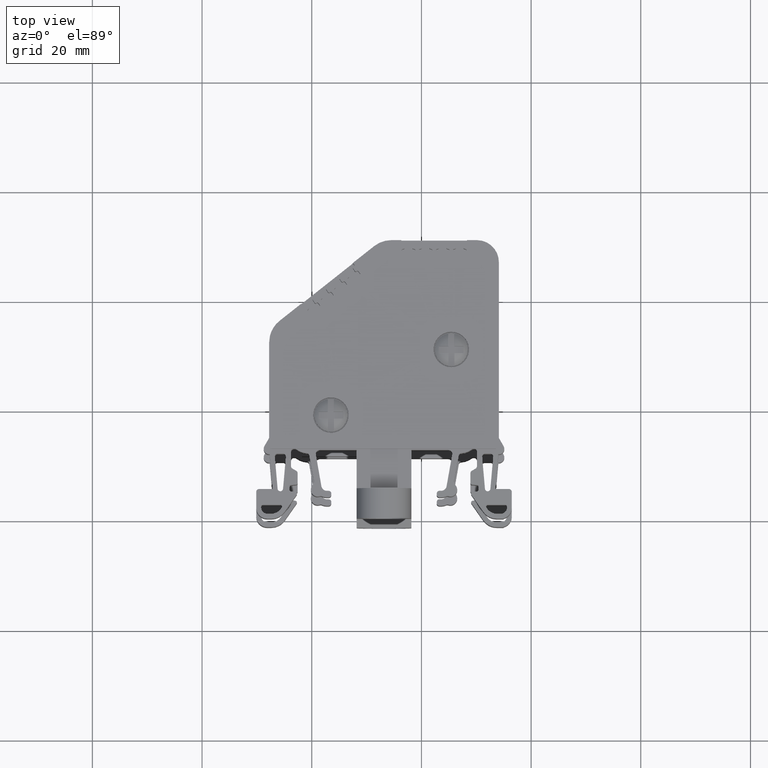
[diagram: clean part render]
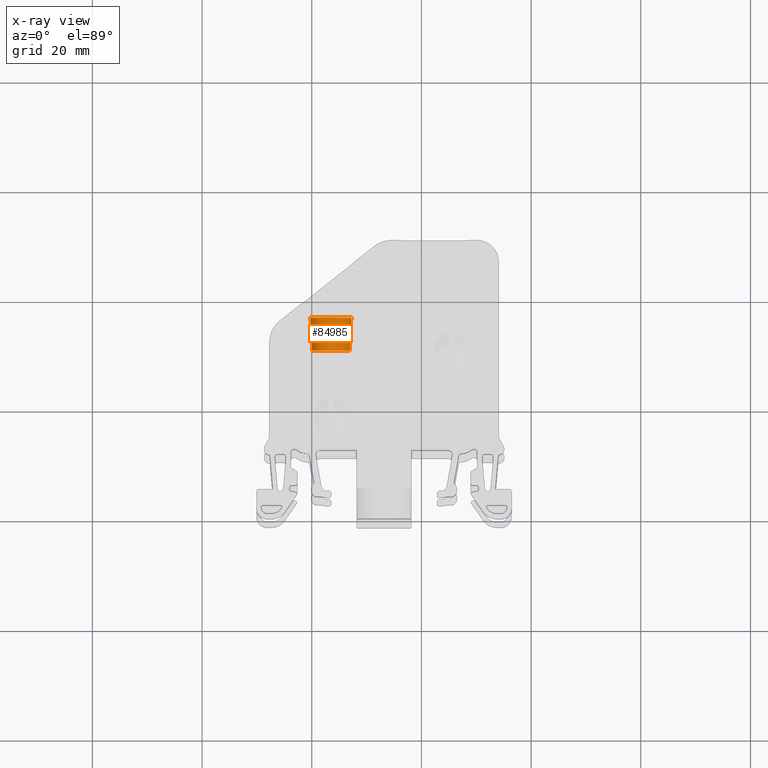
[diagram: x-ray — body ghosted, one internal face saturated and labeled with its STEP entity id]
A machine part, top view, then the same camera in x-ray: the body is ghosted and one INTERNAL B-rep face — a face not visible from any outside direction — is saturated and labeled: STEP entity #84985.
In plain terms, the highlighted conical surface has half-angle 3 deg.
Its self-contained STEP definition (entity closure, byte-faithful):
#2483 = CARTESIAN_POINT ( 'NONE',  ( -52.78163004031456800, 35.55127427672903900, 42.01981950543060400 ) ) ;
#2505 = CARTESIAN_POINT ( 'NONE',  ( -53.09712487160049200, 29.53127427673077300, 42.01981950543052600 ) ) ;
#2506 = CARTESIAN_POINT ( 'NONE',  ( -59.90613520902143600, 29.53127427671951100, 42.01981950543052600 ) ) ;
#2561 = CARTESIAN_POINT ( 'NONE',  ( -60.22163004030626600, 35.55127427670640100, 42.01981950543060400 ) ) ;
#15126 = VECTOR ( 'NONE', #84195, 1000.000000000000100 ) ;
#15304 = VECTOR ( 'NONE', #84471, 1000.000000000000100 ) ;
#30603 = CARTESIAN_POINT ( 'NONE',  ( -56.50163004031117000, 35.55127427671315100, 42.01981950543059700 ) ) ;
#30606 = FACE_OUTER_BOUND ( 'NONE', #45063, .T. ) ;
#30615 = DIRECTION ( 'NONE',  ( -1.000000000000000000, 2.051823466211728700E-014, 0.0000000000000000000 ) ) ;
#30648 = DIRECTION ( 'NONE',  ( 2.051823466211726800E-014, 1.000000000000000000, 1.585499951163608200E-014 ) ) ;
#45063 = EDGE_LOOP ( 'NONE', ( #82973, #82936, #82978, #82972 ) ) ;
#48493 = CONICAL_SURFACE ( 'NONE', #48541, 3.719999999995282600, 0.05235987756015277700 ) ;
#48541 = AXIS2_PLACEMENT_3D ( 'NONE', #30603, #30648, #30615 ) ;
#53876 = B_SPLINE_CURVE_WITH_KNOTS ( 'NONE', 3,
 ( #84917, #84920, #84857, #84906, #84892, #84866, #84858, #84869, #84883, #84893, #84895, #84939, #85005, #84977, #84927, #84986, #84930, #84993 ),
 .UNSPECIFIED., .F., .F.,
 ( 4, 2, 2, 2, 2, 2, 2, 2, 4 ),
 ( 0.0000000000000000000, 0.1250000000000000000, 0.2500000000000000000, 0.3750000000000000000, 0.5000000000000000000, 0.6250000000000000000, 0.7500000000000000000, 0.8750000000000000000, 1.000000000000000000 ),
 .UNSPECIFIED. ) ;
#53922 = B_SPLINE_CURVE_WITH_KNOTS ( 'NONE', 3,
 ( #83865, #83866, #83895, #83880, #83843, #83845, #83867, #83868, #83869, #83870, #83872, #83871, #83873, #83881, #83919, #83904, #83932, #83928, #83912, #83924, #83949, #83950, #83951, #83902, #83947, #83903, #83913, #83911, #83952, #83933, #83937, #83938, #83905, #83925, #83910, #83953, #83898, #83929, #83906, #83908, #83907, #83920, #83926, #83946, #83918, #83954, #83941, #83935, #83909, #83955, #83916, #83900, #83939, #83921 ),
 .UNSPECIFIED., .F., .F.,
 ( 4, 1, 1, 1, 2, 2, 2, 2, 2, 1, 2, 2, 1, 1, 2, 2, 2, 1, 1, 1, 2, 2, 2, 2, 2, 1, 2, 2, 1, 1, 2, 2, 4 ),
 ( 0.0000000000000000000, 0.06250000000000972800, 0.09375000000001551500, 0.1093750000000190400, 0.1171875000000196200, 0.1250000000000202100, 0.1562500000000203200, 0.1875000000000204300, 0.2500000000000183200, 0.2812500000000166500, 0.2968750000000163200, 0.3125000000000160400, 0.3437500000000164300, 0.3593750000000158800, 0.3671875000000148200, 0.3750000000000137100, 0.5000000000000040000, 0.5625000000000001100, 0.5937499999999978900, 0.6093749999999971100, 0.6171874999999966700, 0.6249999999999962300, 0.6562499999999943400, 0.6874999999999924500, 0.7499999999999894500, 0.7812499999999867900, 0.7968749999999860100, 0.8124999999999852300, 0.8437499999999836800, 0.8593749999999829000, 0.8671874999999829000, 0.8749999999999829000, 1.000000000000000000 ),
 .UNSPECIFIED. ) ;
#74864 = EDGE_CURVE ( 'NONE', #76899, #76847, #53922, .T. ) ;
#74920 = EDGE_CURVE ( 'NONE', #76849, #76847, #84136, .T. ) ;
#74964 = EDGE_CURVE ( 'NONE', #76821, #76899, #84469, .T. ) ;
#75024 = EDGE_CURVE ( 'NONE', #76821, #76849, #53876, .T. ) ;
#76821 = VERTEX_POINT ( 'NONE', #2506 ) ;
#76847 = VERTEX_POINT ( 'NONE', #2483 ) ;
#76849 = VERTEX_POINT ( 'NONE', #2505 ) ;
#76899 = VERTEX_POINT ( 'NONE', #2561 ) ;
#82936 = ORIENTED_EDGE ( 'NONE', *, *, #74920, .T. ) ;
#82972 = ORIENTED_EDGE ( 'NONE', *, *, #74964, .F. ) ;
#82973 = ORIENTED_EDGE ( 'NONE', *, *, #75024, .T. ) ;
#82978 = ORIENTED_EDGE ( 'NONE', *, *, #74864, .F. ) ;
#83843 = CARTESIAN_POINT ( 'NONE',  ( -60.03175942214929300, 35.55127427675298400, 43.19592741570361500 ) ) ;
#83845 = CARTESIAN_POINT ( 'NONE',  ( -60.00221219037813800, 35.55127427675297700, 43.27892788613642900 ) ) ;
#83865 = CARTESIAN_POINT ( 'NONE',  ( -60.22163004030626600, 35.55127427670640100, 42.01981950543060400 ) ) ;
#83866 = CARTESIAN_POINT ( 'NONE',  ( -60.22149738969542900, 35.55127427675302000, 42.25651100333766400 ) ) ;
#83867 = CARTESIAN_POINT ( 'NONE',  ( -59.98183593269637000, 35.55127427675297000, 43.33412914593570500 ) ) ;
#83868 = CARTESIAN_POINT ( 'NONE',  ( -59.97197270889559200, 35.55127427675297700, 43.35998519717394800 ) ) ;
#83869 = CARTESIAN_POINT ( 'NONE',  ( -59.91432176573383100, 35.55127427675297700, 43.50571833630970500 ) ) ;
#83870 = CARTESIAN_POINT ( 'NONE',  ( -59.86249562361754800, 35.55127427675297000, 43.61953725554921800 ) ) ;
#83871 = CARTESIAN_POINT ( 'NONE',  ( -59.68529737902084500, 35.55127427675295600, 43.94823744488512300 ) ) ;
#83872 = CARTESIAN_POINT ( 'NONE',  ( -59.74743256421121600, 35.55127427675296300, 43.84163990989007000 ) ) ;
#83873 = CARTESIAN_POINT ( 'NONE',  ( -59.47516526809116000, 35.55127427675295600, 44.26984447430071900 ) ) ;
#83880 = CARTESIAN_POINT ( 'NONE',  ( -60.09358287968891000, 35.55127427675298400, 43.00086958622331700 ) ) ;
#83881 = CARTESIAN_POINT ( 'NONE',  ( -59.31310742966308400, 35.55127427675294900, 44.46911317070113500 ) ) ;
#83895 = CARTESIAN_POINT ( 'NONE',  ( -60.18874946172875400, 35.55127427675299100, 42.60519366671424300 ) ) ;
#83898 = CARTESIAN_POINT ( 'NONE',  ( -54.67980963369484500, 35.55127427675282800, 45.26562202791721000 ) ) ;
#83900 = CARTESIAN_POINT ( 'NONE',  ( -52.86895815048678300, 35.55127427675283500, 42.95035444777798300 ) ) ;
#83902 = CARTESIAN_POINT ( 'NONE',  ( -57.92935363068414000, 35.55127427675291300, 45.45506455766146600 ) ) ;
#83903 = CARTESIAN_POINT ( 'NONE',  ( -57.43182993072407100, 35.55127427675287800, 45.65262412425602900 ) ) ;
#83904 = CARTESIAN_POINT ( 'NONE',  ( -58.89930500547610800, 35.55127427675293500, 44.86915560656050400 ) ) ;
#83905 = CARTESIAN_POINT ( 'NONE',  ( -55.18744216494780400, 35.55127427675284900, 45.50007356736882300 ) ) ;
#83906 = CARTESIAN_POINT ( 'NONE',  ( -54.25160507146734500, 35.55127427675284200, 44.99335473323347400 ) ) ;
#83907 = CARTESIAN_POINT ( 'NONE',  ( -53.78062103393256900, 35.55127427675282800, 44.55973664978424200 ) ) ;
#83908 = CARTESIAN_POINT ( 'NONE',  ( -54.05233637502644200, 35.55127427675282800, 44.83129689476497500 ) ) ;
#83909 = CARTESIAN_POINT ( 'NONE',  ( -53.09099210073591700, 35.55127427675282800, 43.50537727192802600 ) ) ;
#83910 = CARTESIAN_POINT ( 'NONE',  ( -55.01573120799419300, 35.55127427675282800, 45.43251122991093600 ) ) ;
#83911 = CARTESIAN_POINT ( 'NONE',  ( -56.26544131460142500, 35.55127427675286400, 45.73988574845361700 ) ) ;
#83912 = CARTESIAN_POINT ( 'NONE',  ( -58.58969800545627000, 35.55127427675291300, 45.09913214937390100 ) ) ;
#83913 = CARTESIAN_POINT ( 'NONE',  ( -56.97400749172983600, 35.55127427675287800, 45.73968701938443400 ) ) ;
#83916 = CARTESIAN_POINT ( 'NONE',  ( -53.05368377347598900, 35.55127427675284200, 43.41655541107715500 ) ) ;
#83918 = CARTESIAN_POINT ( 'NONE',  ( -53.42231738599306100, 35.55127427675282800, 44.10788745471556600 ) ) ;
#83919 = CARTESIAN_POINT ( 'NONE',  ( -59.04154718465564100, 35.55127427675294900, 44.74082851181671600 ) ) ;
#83920 = CARTESIAN_POINT ( 'NONE',  ( -53.65229393919415200, 35.55127427675283500, 44.41749447061139500 ) ) ;
#83921 = CARTESIAN_POINT ( 'NONE',  ( -52.78163004031456800, 35.55127427672903900, 42.01981950543060400 ) ) ;
#83924 = CARTESIAN_POINT ( 'NONE',  ( -58.43235495779804000, 35.55127427675293500, 45.20206412274475800 ) ) ;
#83925 = CARTESIAN_POINT ( 'NONE',  ( -55.16146434892750200, 35.55127427675285600, 45.49016217425069200 ) ) ;
#83926 = CARTESIAN_POINT ( 'NONE',  ( -53.53526270816859500, 35.55127427675282800, 44.26555920641487800 ) ) ;
#83928 = CARTESIAN_POINT ( 'NONE',  ( -58.64392554626216000, 35.55127427675292000, 45.06169746632726700 ) ) ;
#83929 = CARTESIAN_POINT ( 'NONE',  ( -54.57321210084386100, 35.55127427675282800, 45.20348684412906700 ) ) ;
#83932 = CARTESIAN_POINT ( 'NONE',  ( -58.74736974128291000, 35.55127427675292800, 44.98618683758335400 ) ) ;
#83933 = CARTESIAN_POINT ( 'NONE',  ( -55.52123984802769000, 35.55127427675284900, 45.61203339270823400 ) ) ;
#83935 = CARTESIAN_POINT ( 'NONE',  ( -53.12894242060983900, 35.55127427675284900, 43.59155138939298300 ) ) ;
#83937 = CARTESIAN_POINT ( 'NONE',  ( -55.32590706500197100, 35.55127427675284200, 45.55010116521035700 ) ) ;
#83938 = CARTESIAN_POINT ( 'NONE',  ( -55.24275340616527800, 35.55127427675284900, 45.52049333303384800 ) ) ;
#83939 = CARTESIAN_POINT ( 'NONE',  ( -52.78189564380477300, 35.55127427675283500, 42.49391700792127600 ) ) ;
#83941 = CARTESIAN_POINT ( 'NONE',  ( -53.22477082534712900, 35.55127427675282800, 43.78858445922259100 ) ) ;
#83946 = CARTESIAN_POINT ( 'NONE',  ( -53.45975207942106500, 35.55127427675282100, 44.16211501138970200 ) ) ;
#83947 = CARTESIAN_POINT ( 'NONE',  ( -57.89838688670327800, 35.55127427675289900, 45.46775747670338300 ) ) ;
#83949 = CARTESIAN_POINT ( 'NONE',  ( -58.27039493859107500, 35.55127427675291300, 45.29667875670752200 ) ) ;
#83950 = CARTESIAN_POINT ( 'NONE',  ( -58.07336188263944600, 35.55127427675289900, 45.39250715236661200 ) ) ;
#83951 = CARTESIAN_POINT ( 'NONE',  ( -57.98718778004366900, 35.55127427675289900, 45.43045746251391400 ) ) ;
#83952 = CARTESIAN_POINT ( 'NONE',  ( -55.91713573037305500, 35.55127427675286400, 45.70728699071492700 ) ) ;
#83953 = CARTESIAN_POINT ( 'NONE',  ( -54.90191228803567500, 35.55127427675283500, 45.38068508732347800 ) ) ;
#83954 = CARTESIAN_POINT ( 'NONE',  ( -53.31938544374733600, 35.55127427675282800, 43.95054445463880200 ) ) ;
#83955 = CARTESIAN_POINT ( 'NONE',  ( -53.06638499780709100, 35.55127427675282800, 43.44754311067308100 ) ) ;
#84136 = LINE ( 'NONE', #84169, #15126 ) ;
#84169 = CARTESIAN_POINT ( 'NONE',  ( -52.78163004031588900, 35.55127427671308000, 42.01981950543059700 ) ) ;
#84195 = DIRECTION ( 'NONE',  ( 0.05233595624328677600, 0.9986295347545559600, 1.583968009196823400E-014 ) ) ;
#84455 = CARTESIAN_POINT ( 'NONE',  ( -60.22163004030645100, 35.55127427671322900, 42.01981950543059700 ) ) ;
#84469 = LINE ( 'NONE', #84455, #15304 ) ;
#84471 = DIRECTION ( 'NONE',  ( -0.05233595624324578100, 0.9986295347545579600, 1.583327078583886600E-014 ) ) ;
#84857 = CARTESIAN_POINT ( 'NONE',  ( -59.81752505221145100, 29.53127427673507200, 42.91094153063073700 ) ) ;
#84858 = CARTESIAN_POINT ( 'NONE',  ( -58.21620346204478100, 29.53127427673500100, 44.99462978093151800 ) ) ;
#84866 = CARTESIAN_POINT ( 'NONE',  ( -58.59385752488003600, 29.53127427673500800, 44.74228940362156900 ) ) ;
#84869 = CARTESIAN_POINT ( 'NONE',  ( -57.39275206551153000, 29.53127427673498000, 45.33571451733065100 ) ) ;
#84883 = CARTESIAN_POINT ( 'NONE',  ( -56.94727872477503900, 29.53127427673496900, 45.42432467414105400 ) ) ;
#84892 = CARTESIAN_POINT ( 'NONE',  ( -59.22409993850237000, 29.53127427673502900, 44.11204698999922200 ) ) ;
#84893 = CARTESIAN_POINT ( 'NONE',  ( -56.05598135584757800, 29.53127427673494800, 45.42432467414106900 ) ) ;
#84895 = CARTESIAN_POINT ( 'NONE',  ( -55.61050801511108700, 29.53127427673494400, 45.33571451733065800 ) ) ;
#84906 = CARTESIAN_POINT ( 'NONE',  ( -59.47644031581229000, 29.53127427673504700, 43.73439292716397400 ) ) ;
#84917 = CARTESIAN_POINT ( 'NONE',  ( -59.90613520902143600, 29.53127427671951100, 42.01981950543052600 ) ) ;
#84920 = CARTESIAN_POINT ( 'NONE',  ( -59.90613520902185500, 29.53127427673507200, 42.46546818989425300 ) ) ;
#84927 = CARTESIAN_POINT ( 'NONE',  ( -53.52681976481029100, 29.53127427673492600, 43.73439292716400900 ) ) ;
#84930 = CARTESIAN_POINT ( 'NONE',  ( -53.09712487160074800, 29.53127427673493700, 42.46546818989427400 ) ) ;
#84939 = CARTESIAN_POINT ( 'NONE',  ( -54.78705661857783600, 29.53127427673492600, 44.99462978093153300 ) ) ;
#84977 = CARTESIAN_POINT ( 'NONE',  ( -53.77916014212023300, 29.53127427673492600, 44.11204698999924300 ) ) ;
#84985 = ADVANCED_FACE ( 'NONE', ( #30606 ), #48493, .T. ) ;
#84986 = CARTESIAN_POINT ( 'NONE',  ( -53.18573502841116600, 29.53127427673492600, 42.91094153063076500 ) ) ;
#84993 = CARTESIAN_POINT ( 'NONE',  ( -53.09712487160049200, 29.53127427673077300, 42.01981950543052600 ) ) ;
#85005 = CARTESIAN_POINT ( 'NONE',  ( -54.40940255574258100, 29.53127427673493000, 44.74228940362158400 ) ) ;